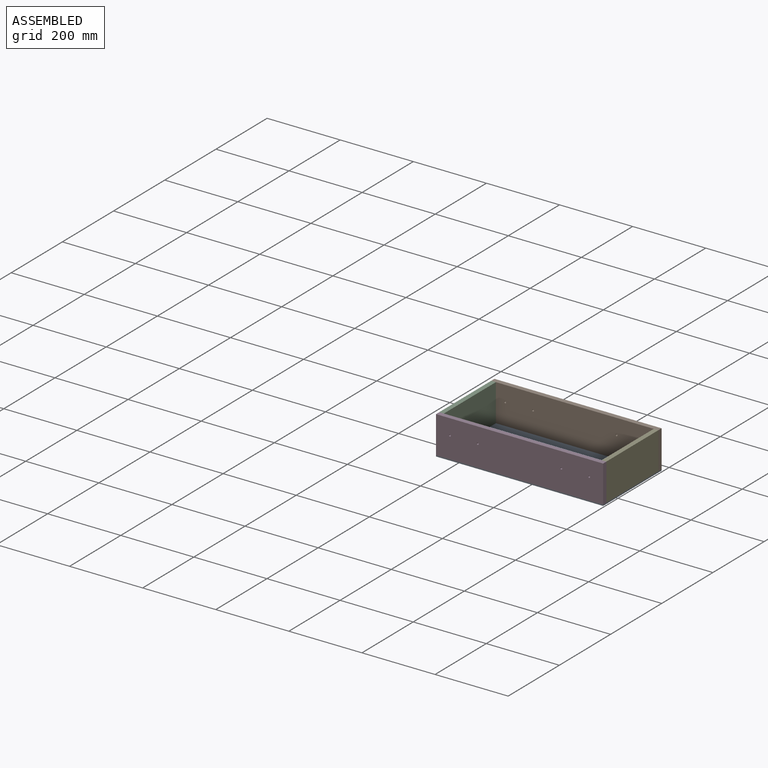
[diagram: assembled view]
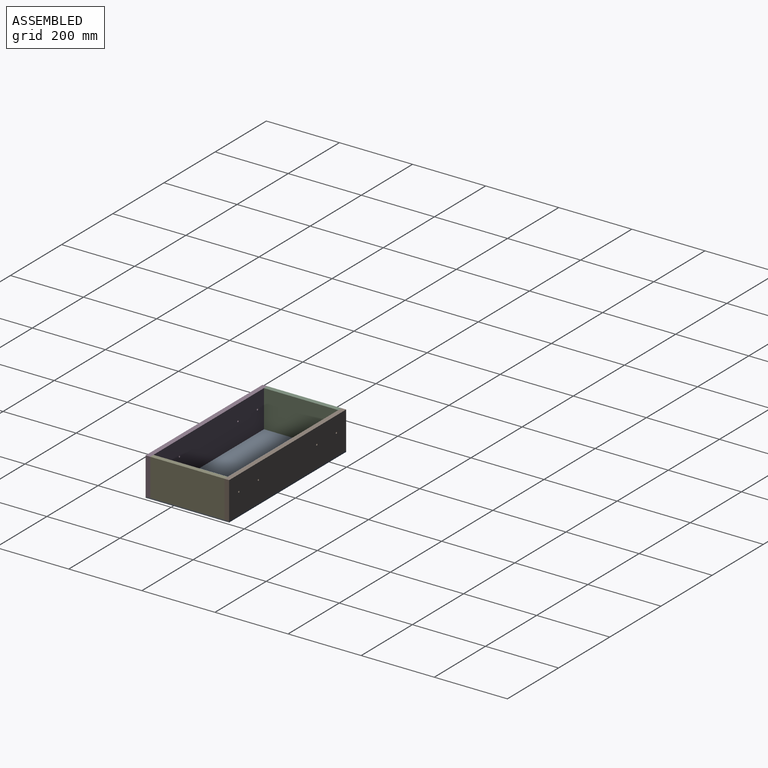
[diagram: assembled view, second angle]
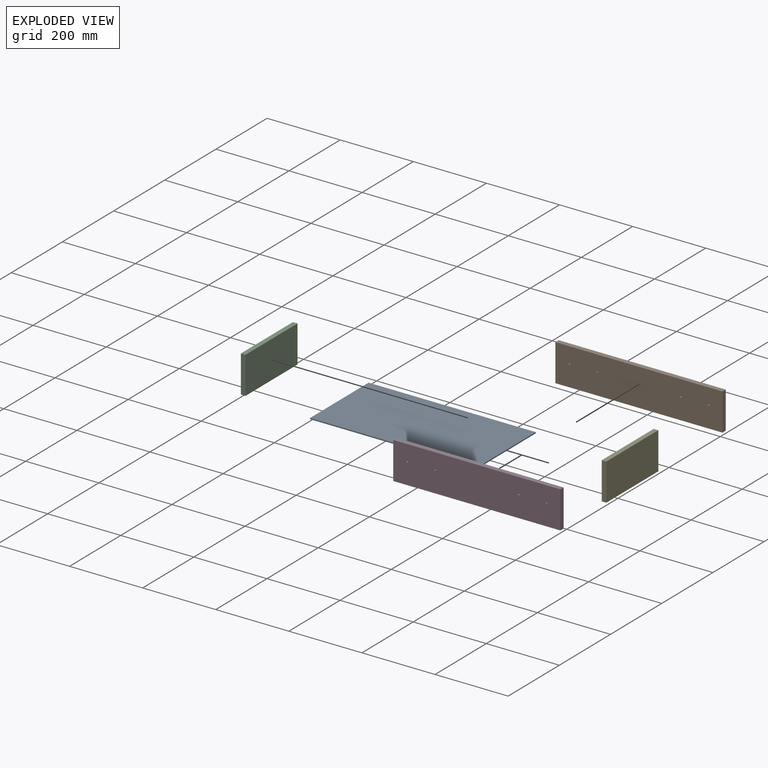
[diagram: exploded view]
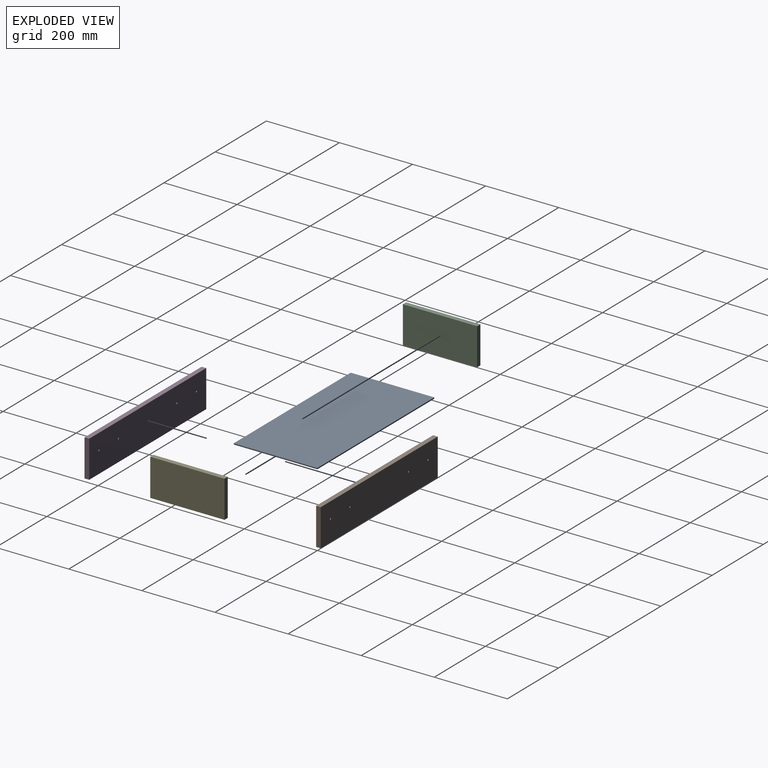
[diagram: exploded view, second angle]
ASSEMBLY  parts=5 mates=4
PART A: 6 faces, bbox 457.2x228.6x3.2 mm
  f0: plane 228.6x3.18mm, normal (1,0,0), area 725.8mm2, adj f1,f3,f4,f5
  f1: plane 457.2x3.18mm, normal (0,1,0), area 1451.6mm2, adj f0,f2,f4,f5
  f2: plane 228.6x3.18mm, normal (-1,0,0), area 725.8mm2, adj f1,f3,f4,f5
  f3: plane 457.2x3.18mm, normal (0,-1,0), area 1451.6mm2, adj f0,f2,f4,f5
  f4: plane 457.2x228.6mm, normal (0,0,1), area 104515.9mm2, adj f0,f1,f2,f3
  f5: plane 457.2x228.6mm, normal (0,0,-1), area 104515.9mm2, adj f0,f1,f2,f3
PART B: 10 faces, bbox 457.2x12.7x101.6 mm
  f0: plane 457.2x101.6mm, normal (0,1,0), area 46373mm2, adj f2,f3,f4,f5,f6,f7,f8,f9
  f1: plane 457.2x101.6mm, normal (0,-1,0), area 46373mm2, adj f2,f3,f4,f5,f6,f7,f8,f9
  f2: plane 101.6x12.7mm, normal (-1,0,0), area 1290.3mm2, adj f0,f1,f4,f5
  f3: plane 101.6x12.7mm, normal (1,0,0), area 1290.3mm2, adj f0,f1,f4,f5
  f4: plane 457.2x12.7mm, normal (0,0,1), area 5806.4mm2, adj f0,f1,f2,f3
  f5: plane 457.2x12.7mm, normal (0,0,-1), area 5806.4mm2, adj f0,f1,f2,f3
  f6: cylinder r=2.5mm len=12.7mm, axis (0,-1,0), area 199.5mm2, adj f0,f1
  f7: cylinder r=2.5mm len=12.7mm, axis (0,-1,0), area 199.5mm2, adj f0,f1
  f8: cylinder r=2.5mm len=12.7mm, axis (0,-1,0), area 199.5mm2, adj f0,f1
  f9: cylinder r=2.5mm len=12.7mm, axis (0,-1,0), area 199.5mm2, adj f0,f1
PART C: 6 faces, bbox 12.7x203.2x101.6 mm
  f0: plane 203.2x101.6mm, normal (1,0,0), area 20645.1mm2, adj f1,f3,f4,f5
  f1: plane 101.6x12.7mm, normal (0,1,0), area 1290.3mm2, adj f0,f2,f4,f5
  f2: plane 203.2x101.6mm, normal (-1,0,0), area 20645.1mm2, adj f1,f3,f4,f5
  f3: plane 101.6x12.7mm, normal (0,-1,0), area 1290.3mm2, adj f0,f2,f4,f5
  f4: plane 203.2x12.7mm, normal (0,0,1), area 2580.6mm2, adj f0,f1,f2,f3
  f5: plane 203.2x12.7mm, normal (0,0,-1), area 2580.6mm2, adj f0,f1,f2,f3
PART D: 10 faces, bbox 457.2x12.7x101.6 mm
  f0: plane 457.2x101.6mm, normal (0,-1,0), area 46373mm2, adj f2,f3,f4,f5,f6,f7,f8,f9
  f1: plane 457.2x101.6mm, normal (0,1,0), area 46373mm2, adj f2,f3,f4,f5,f6,f7,f8,f9
  f2: plane 101.6x12.7mm, normal (-1,0,0), area 1290.3mm2, adj f0,f1,f4,f5
  f3: plane 101.6x12.7mm, normal (1,0,0), area 1290.3mm2, adj f0,f1,f4,f5
  f4: plane 457.2x12.7mm, normal (0,0,1), area 5806.4mm2, adj f0,f1,f2,f3
  f5: plane 457.2x12.7mm, normal (0,0,-1), area 5806.4mm2, adj f0,f1,f2,f3
  f6: cylinder r=2.5mm len=12.7mm, axis (0,-1,0), area 199.5mm2, adj f0,f1
  f7: cylinder r=2.5mm len=12.7mm, axis (0,-1,0), area 199.5mm2, adj f0,f1
  f8: cylinder r=2.5mm len=12.7mm, axis (0,-1,0), area 199.5mm2, adj f0,f1
  f9: cylinder r=2.5mm len=12.7mm, axis (0,-1,0), area 199.5mm2, adj f0,f1
PART E: 6 faces, bbox 12.7x203.2x101.6 mm
  f0: plane 101.6x12.7mm, normal (0,1,0), area 1290.3mm2, adj f1,f3,f4,f5
  f1: plane 203.2x101.6mm, normal (-1,0,0), area 20645.1mm2, adj f0,f2,f4,f5
  f2: plane 101.6x12.7mm, normal (0,-1,0), area 1290.3mm2, adj f1,f3,f4,f5
  f3: plane 203.2x101.6mm, normal (1,0,0), area 20645.1mm2, adj f0,f2,f4,f5
  f4: plane 203.2x12.7mm, normal (0,0,1), area 2580.6mm2, adj f0,f1,f2,f3
  f5: plane 203.2x12.7mm, normal (0,0,-1), area 2580.6mm2, adj f0,f1,f2,f3
PLACE A t=(-22.96,48.43,-90.69)mm
PLACE B t=(-22.96,48.43,-90.69)mm
PLACE C t=(-22.96,48.43,-90.69)mm
PLACE D t=(-22.96,48.43,-90.69)mm
PLACE E t=(-22.96,48.43,-90.69)mm
MATE fastened C.f2 <-> D.f2  axis (-1,0,0) through (-251.56,-53.17,-87.51)mm
MATE fastened E.f3 <-> B.f3  axis (1,0,0) through (205.64,150.03,-87.51)mm
MATE fastened D.f2 <-> A.f2  axis (-1,0,0) through (-251.56,-65.87,-87.51)mm
MATE fastened B.f2 <-> C.f2  axis (-1,0,0) through (-251.56,150.03,-87.51)mm
